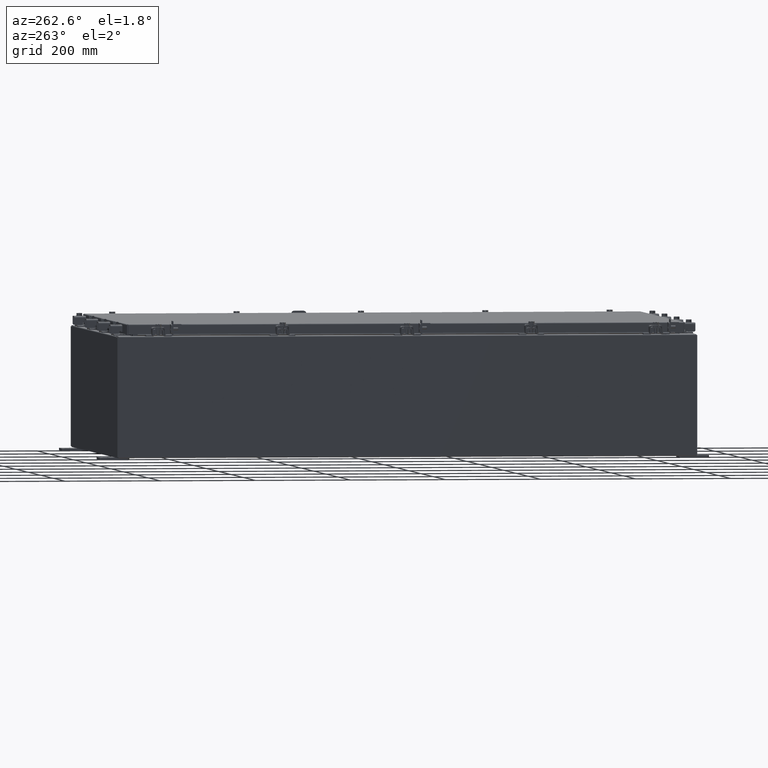
[diagram: clean part render]
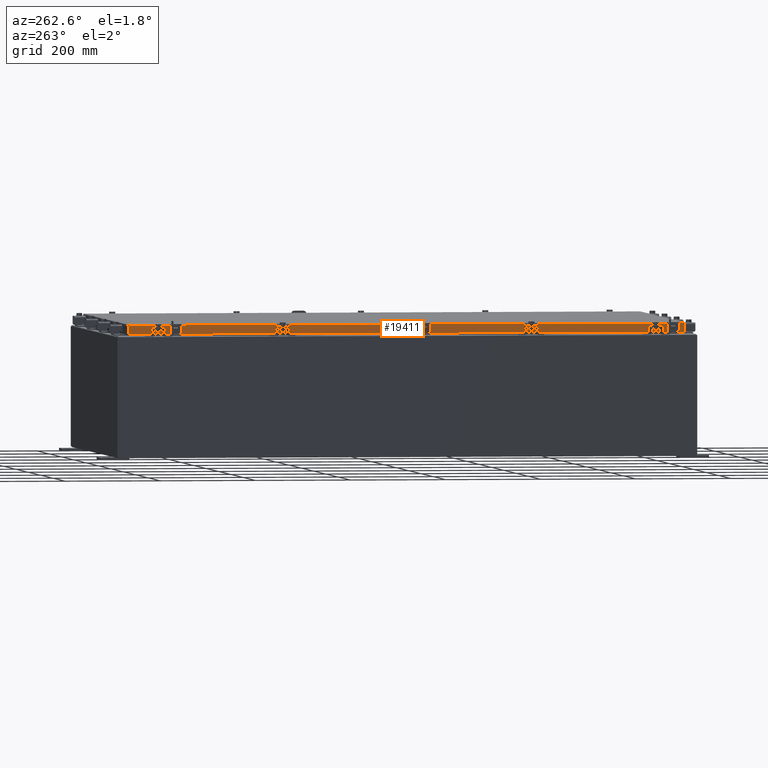
[diagram: same view with one face highlighted and labeled with its STEP entity id]
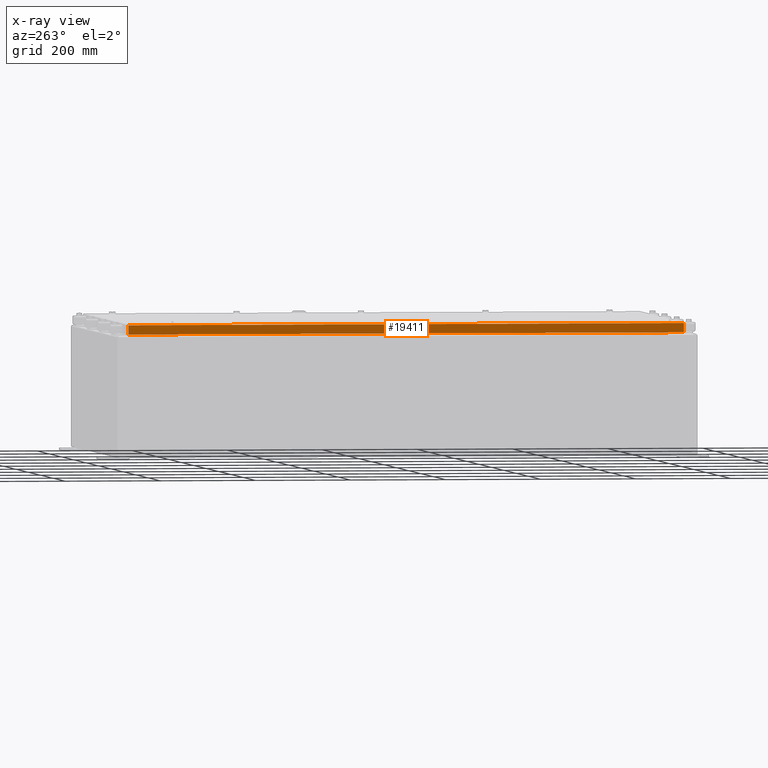
[diagram: x-ray of the same camera — body ghosted, the highlighted face saturated]
A machine part, auxiliary view. The second image highlights one B-rep face of the part: STEP entity #19411.
The next image is the same camera in x-ray: the body ghosted, the highlighted face saturated — about 0% of this face is hidden behind the body in this view.
In plain terms, the highlighted planar face has unit normal (1, 0, -0).
Its self-contained STEP definition (entity closure, byte-faithful):
#357 = CARTESIAN_POINT ( 'NONE',  ( -14.07799999999999900, 23.00515786437626200, -0.8499999999999940900 ) ) ;
#639 = VECTOR ( 'NONE', #13464, 39.37007874015748100 ) ;
#1102 = VERTEX_POINT ( 'NONE', #4240 ) ;
#1480 = VECTOR ( 'NONE', #20898, 39.37007874015748100 ) ;
#1548 = CARTESIAN_POINT ( 'NONE',  ( -14.07799999999999900, -23.00515786437625800, -0.8499999999999996400 ) ) ;
#1777 = CARTESIAN_POINT ( 'NONE',  ( -14.07799999999999800, 23.00515786437626200, 2.005891783295810000E-013 ) ) ;
#1974 = EDGE_LOOP ( 'NONE', ( #8284, #18321, #12366, #2473, #9338, #7442 ) ) ;
#2295 = DIRECTION ( 'NONE',  ( -4.379057701015054300E-047, 1.000000000000000000, 1.212498568245375500E-016 ) ) ;
#2473 = ORIENTED_EDGE ( 'NONE', *, *, #13658, .F. ) ;
#2968 = PLANE ( 'NONE',  #11247 ) ;
#3794 = LINE ( 'NONE', #17163, #20656 ) ;
#4240 = CARTESIAN_POINT ( 'NONE',  ( -14.07799999999999400, 22.25515786437626200, -0.8500000000000016400 ) ) ;
#4808 = CARTESIAN_POINT ( 'NONE',  ( -14.07799999999999400, -22.25515786437626200, -0.8500000000000016400 ) ) ;
#5326 = LINE ( 'NONE', #1777, #14030 ) ;
#5344 = VECTOR ( 'NONE', #17580, 39.37007874015748100 ) ;
#5431 = CARTESIAN_POINT ( 'NONE',  ( -14.07799999999999800, -23.00515786437626200, -0.07469999999999978000 ) ) ;
#5604 = VERTEX_POINT ( 'NONE', #15800 ) ;
#6265 = VERTEX_POINT ( 'NONE', #357 ) ;
#6498 = DIRECTION ( 'NONE',  ( 1.000000000000000000, 3.417889107165661600E-031, -2.818880942772360100E-015 ) ) ;
#7442 = ORIENTED_EDGE ( 'NONE', *, *, #12074, .F. ) ;
#7790 = VERTEX_POINT ( 'NONE', #1548 ) ;
#8284 = ORIENTED_EDGE ( 'NONE', *, *, #10329, .F. ) ;
#9338 = ORIENTED_EDGE ( 'NONE', *, *, #17433, .F. ) ;
#9975 = LINE ( 'NONE', #5431, #5344 ) ;
#10329 = EDGE_CURVE ( 'NONE', #14672, #13459, #3794, .T. ) ;
#10736 = CARTESIAN_POINT ( 'NONE',  ( -14.07799999999999800, -23.00515786437626200, -0.08770000000000007000 ) ) ;
#11247 = AXIS2_PLACEMENT_3D ( 'NONE', #15122, #6498, #18596 ) ;
#12074 = EDGE_CURVE ( 'NONE', #13459, #7790, #9975, .T. ) ;
#12366 = ORIENTED_EDGE ( 'NONE', *, *, #12965, .F. ) ;
#12491 = EDGE_CURVE ( 'NONE', #14672, #6265, #5326, .T. ) ;
#12965 = EDGE_CURVE ( 'NONE', #1102, #6265, #15360, .T. ) ;
#13459 = VERTEX_POINT ( 'NONE', #10736 ) ;
#13464 = DIRECTION ( 'NONE',  ( -0.0000000000000000000, 1.000000000000000000, -0.0000000000000000000 ) ) ;
#13658 = EDGE_CURVE ( 'NONE', #5604, #1102, #19681, .T. ) ;
#13810 = LINE ( 'NONE', #21364, #22506 ) ;
#14030 = VECTOR ( 'NONE', #20852, 39.37007874015748100 ) ;
#14672 = VERTEX_POINT ( 'NONE', #17805 ) ;
#15122 = CARTESIAN_POINT ( 'NONE',  ( -14.07799999999999800, -4.811704285067817000E-030, 3.994501956836086200E-014 ) ) ;
#15360 = LINE ( 'NONE', #19145, #1480 ) ;
#15627 = FACE_OUTER_BOUND ( 'NONE', #1974, .T. ) ;
#15800 = CARTESIAN_POINT ( 'NONE',  ( -14.07799999999999400, -22.25515786437626200, -0.8500000000000016400 ) ) ;
#17163 = CARTESIAN_POINT ( 'NONE',  ( -14.07799999999999800, -23.09399999999999400, -0.08770000000000007000 ) ) ;
#17433 = EDGE_CURVE ( 'NONE', #7790, #5604, #13810, .T. ) ;
#17580 = DIRECTION ( 'NONE',  ( -2.818880942772360100E-015, 6.982962677686265900E-015, -1.000000000000000000 ) ) ;
#17805 = CARTESIAN_POINT ( 'NONE',  ( -14.07799999999999800, 23.00515786437626200, -0.08770000000000007000 ) ) ;
#18321 = ORIENTED_EDGE ( 'NONE', *, *, #12491, .T. ) ;
#18596 = DIRECTION ( 'NONE',  ( -2.818880942772360100E-015, 0.0000000000000000000, -1.000000000000000000 ) ) ;
#18909 = DIRECTION ( 'NONE',  ( 3.417889107165661600E-031, -1.000000000000000000, -9.316371385484559400E-046 ) ) ;
#19145 = CARTESIAN_POINT ( 'NONE',  ( -14.07799999999999900, -23.09399999999999400, -0.8499999999999996400 ) ) ;
#19411 = ADVANCED_FACE ( 'NONE', ( #15627 ), #2968, .F. ) ;
#19681 = LINE ( 'NONE', #4808, #639 ) ;
#20656 = VECTOR ( 'NONE', #18909, 39.37007874015748100 ) ;
#20852 = DIRECTION ( 'NONE',  ( -2.818880942772360100E-015, 6.982962677686265900E-015, -1.000000000000000000 ) ) ;
#20898 = DIRECTION ( 'NONE',  ( -4.379057701015054300E-047, 1.000000000000000000, 1.212498568245375500E-016 ) ) ;
#21364 = CARTESIAN_POINT ( 'NONE',  ( -14.07799999999999900, -23.09399999999999400, -0.8499999999999996400 ) ) ;
#22506 = VECTOR ( 'NONE', #2295, 39.37007874015748100 ) ;